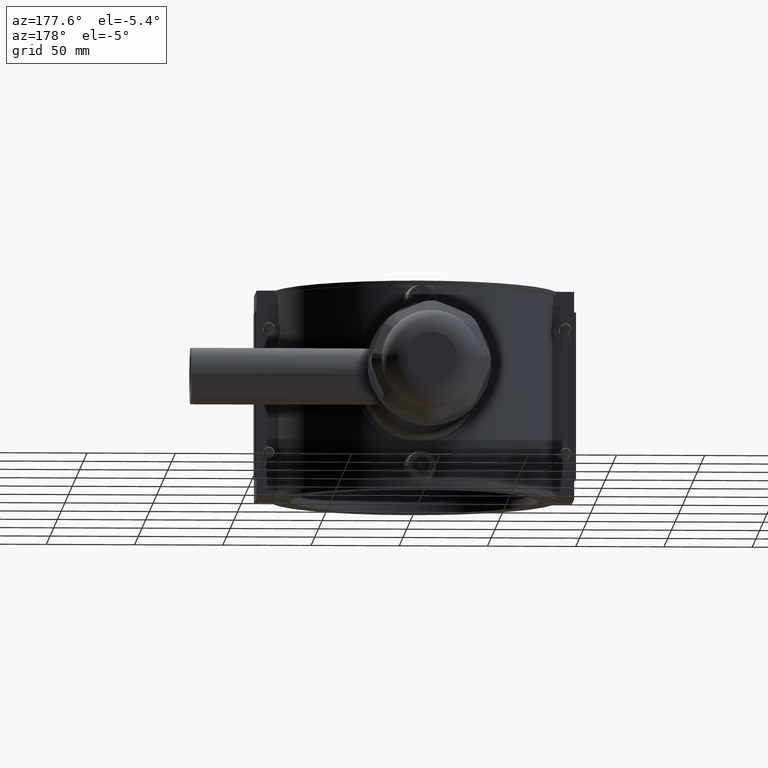
[diagram: clean part render]
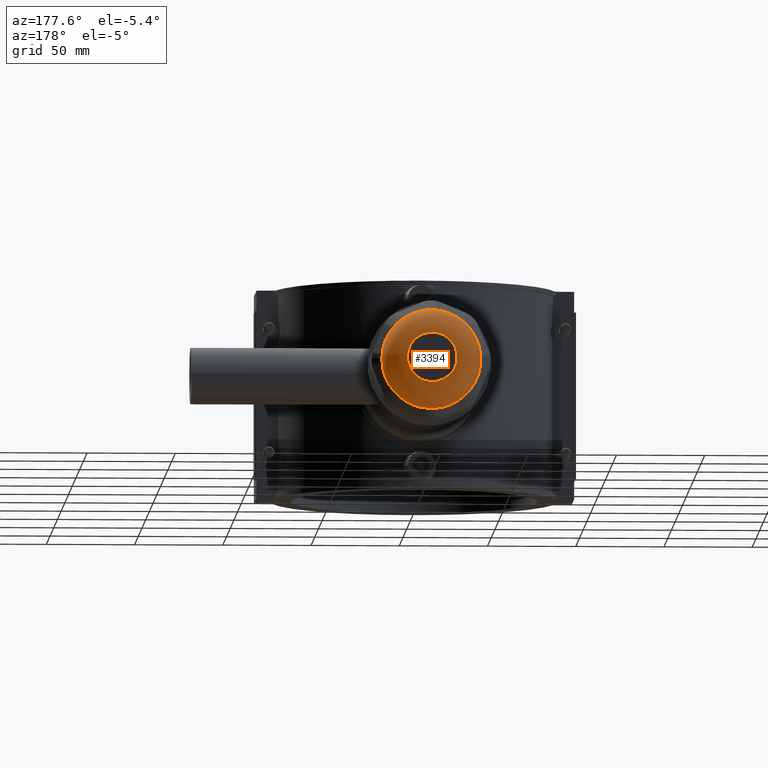
[diagram: same view with one face highlighted and labeled with its STEP entity id]
A machine part, auxiliary view. The second image highlights one B-rep face of the part: STEP entity #3394.
In plain terms, the highlighted toroidal blend (fillet) surface has major radius 14.0929 mm and minor (blend) radius 14 mm.
Its self-contained STEP definition (entity closure, byte-faithful):
#15=TOROIDAL_SURFACE('',#3621,14.0928831169074,14.);
#638=FACE_BOUND('',#1094,.T.);
#691=B_SPLINE_CURVE_WITH_KNOTS('',3,(#5024,#5025,#5026,#5027),
 .UNSPECIFIED.,.F.,.F.,(4,4),(1.23852563111305,1.34473147994745),
 .UNSPECIFIED.);
#693=B_SPLINE_CURVE_WITH_KNOTS('',3,(#5060,#5061,#5062,#5063),
 .UNSPECIFIED.,.F.,.F.,(4,4),(0.,0.0942823848878244),.UNSPECIFIED.);
#695=B_SPLINE_CURVE_WITH_KNOTS('',3,(#5071,#5072,#5073,#5074,#5075,#5076,
#5077,#5078,#5079,#5080,#5081),.UNSPECIFIED.,.F.,.F.,(4,2,3,2,4),(-0.735012587374826,
-0.43467708469622,0.,0.43467708469622,0.735012587374823),.UNSPECIFIED.);
#696=B_SPLINE_CURVE_WITH_KNOTS('',3,(#5100,#5101,#5102,#5103),
 .UNSPECIFIED.,.F.,.F.,(4,4),(1.23852563111309,1.34473147994744),
 .UNSPECIFIED.);
#698=B_SPLINE_CURVE_WITH_KNOTS('',3,(#5136,#5137,#5138,#5139),
 .UNSPECIFIED.,.F.,.F.,(4,4),(0.,0.0942823848878216),.UNSPECIFIED.);
#700=B_SPLINE_CURVE_WITH_KNOTS('',3,(#5147,#5148,#5149,#5150,#5151,#5152,
#5153,#5154,#5155,#5156,#5157),.UNSPECIFIED.,.F.,.F.,(4,2,3,2,4),(-0.735012587374825,
-0.434677084696219,0.,0.434677084696218,0.735012587374823),
 .UNSPECIFIED.);
#701=B_SPLINE_CURVE_WITH_KNOTS('',3,(#5176,#5177,#5178,#5179),
 .UNSPECIFIED.,.F.,.F.,(4,4),(1.23852563111309,1.34473147994743),
 .UNSPECIFIED.);
#703=B_SPLINE_CURVE_WITH_KNOTS('',3,(#5212,#5213,#5214,#5215),
 .UNSPECIFIED.,.F.,.F.,(4,4),(0.,0.094282384887826),.UNSPECIFIED.);
#705=B_SPLINE_CURVE_WITH_KNOTS('',3,(#5223,#5224,#5225,#5226,#5227,#5228,
#5229,#5230,#5231,#5232,#5233),.UNSPECIFIED.,.F.,.F.,(4,2,3,2,4),(-0.735012587374824,
-0.434677084696217,0.,0.434677084696217,0.735012587374822),
 .UNSPECIFIED.);
#706=B_SPLINE_CURVE_WITH_KNOTS('',3,(#5252,#5253,#5254,#5255),
 .UNSPECIFIED.,.F.,.F.,(4,4),(1.2385256311131,1.34473147994746),
 .UNSPECIFIED.);
#708=B_SPLINE_CURVE_WITH_KNOTS('',3,(#5288,#5289,#5290,#5291),
 .UNSPECIFIED.,.F.,.F.,(4,4),(0.,0.0942823848878239),.UNSPECIFIED.);
#710=B_SPLINE_CURVE_WITH_KNOTS('',3,(#5299,#5300,#5301,#5302,#5303,#5304,
#5305,#5306,#5307,#5308,#5309),.UNSPECIFIED.,.F.,.F.,(4,2,3,2,4),(-0.735012587374823,
-0.434677084696218,0.,0.434677084696218,0.735012587374824),
 .UNSPECIFIED.);
#711=B_SPLINE_CURVE_WITH_KNOTS('',3,(#5328,#5329,#5330,#5331),
 .UNSPECIFIED.,.F.,.F.,(4,4),(1.23852563111305,1.3447314799474),
 .UNSPECIFIED.);
#713=B_SPLINE_CURVE_WITH_KNOTS('',3,(#5364,#5365,#5366,#5367),
 .UNSPECIFIED.,.F.,.F.,(4,4),(0.,0.094282384887829),.UNSPECIFIED.);
#715=B_SPLINE_CURVE_WITH_KNOTS('',3,(#5375,#5376,#5377,#5378,#5379,#5380,
#5381,#5382,#5383,#5384,#5385),.UNSPECIFIED.,.F.,.F.,(4,2,3,2,4),(-0.735012587374821,
-0.434677084696222,0.,0.434677084696223,0.735012587374824),
 .UNSPECIFIED.);
#716=B_SPLINE_CURVE_WITH_KNOTS('',3,(#5404,#5405,#5406,#5407),
 .UNSPECIFIED.,.F.,.F.,(4,4),(1.23852563111306,1.34473147994741),
 .UNSPECIFIED.);
#718=B_SPLINE_CURVE_WITH_KNOTS('',3,(#5440,#5441,#5442,#5443),
 .UNSPECIFIED.,.F.,.F.,(4,4),(0.,0.0942823848878234),.UNSPECIFIED.);
#720=B_SPLINE_CURVE_WITH_KNOTS('',3,(#5451,#5452,#5453,#5454,#5455,#5456,
#5457,#5458,#5459,#5460,#5461),.UNSPECIFIED.,.F.,.F.,(4,2,3,2,4),(-0.735012587374824,
-0.434677084696226,0.,0.434677084696225,0.735012587374822),
 .UNSPECIFIED.);
#721=B_SPLINE_CURVE_WITH_KNOTS('',3,(#5480,#5481,#5482,#5483),
 .UNSPECIFIED.,.F.,.F.,(4,4),(1.23852563111311,1.34473147994751),
 .UNSPECIFIED.);
#723=B_SPLINE_CURVE_WITH_KNOTS('',3,(#5516,#5517,#5518,#5519),
 .UNSPECIFIED.,.F.,.F.,(4,4),(0.,0.0942823848878293),.UNSPECIFIED.);
#725=B_SPLINE_CURVE_WITH_KNOTS('',3,(#5527,#5528,#5529,#5530,#5531,#5532,
#5533,#5534,#5535,#5536,#5537),.UNSPECIFIED.,.F.,.F.,(4,2,3,2,4),(-0.735012587374824,
-0.434677084696218,0.,0.434677084696218,0.735012587374822),
 .UNSPECIFIED.);
#726=B_SPLINE_CURVE_WITH_KNOTS('',3,(#5556,#5557,#5558,#5559),
 .UNSPECIFIED.,.F.,.F.,(4,4),(1.238525631113,1.34473147994734),
 .UNSPECIFIED.);
#728=B_SPLINE_CURVE_WITH_KNOTS('',3,(#5583,#5584,#5585,#5586),
 .UNSPECIFIED.,.F.,.F.,(4,4),(0.,0.0942823848878287),.UNSPECIFIED.);
#730=B_SPLINE_CURVE_WITH_KNOTS('',3,(#5594,#5595,#5596,#5597,#5598,#5599,
#5600,#5601,#5602,#5603,#5604),.UNSPECIFIED.,.F.,.F.,(4,2,3,2,4),(-0.735012587374824,
-0.434677084696223,0.,0.434677084696223,0.735012587374821),
 .UNSPECIFIED.);
#878=FACE_OUTER_BOUND('',#1093,.T.);
#1093=EDGE_LOOP('',(#2422,#2423,#2424,#2425,#2426,#2427,#2428,#2429,#2430,
#2431,#2432,#2433,#2434,#2435,#2436,#2437,#2438,#2439,#2440,#2441,#2442,
#2443,#2444,#2445,#2446,#2447,#2448,#2449,#2450,#2451,#2452,#2453));
#1094=EDGE_LOOP('',(#2454));
#1313=CIRCLE('',#3590,28.);
#1314=CIRCLE('',#3592,28.);
#1315=CIRCLE('',#3594,28.);
#1316=CIRCLE('',#3596,28.);
#1317=CIRCLE('',#3598,28.);
#1318=CIRCLE('',#3600,28.);
#1319=CIRCLE('',#3602,28.);
#1320=CIRCLE('',#3604,28.);
#1327=CIRCLE('',#3622,14.0928831169074);
#1417=VERTEX_POINT('',#5000);
#1418=VERTEX_POINT('',#5002);
#1420=VERTEX_POINT('',#5023);
#1423=VERTEX_POINT('',#5036);
#1424=VERTEX_POINT('',#5038);
#1426=VERTEX_POINT('',#5059);
#1428=VERTEX_POINT('',#5099);
#1431=VERTEX_POINT('',#5112);
#1432=VERTEX_POINT('',#5114);
#1434=VERTEX_POINT('',#5135);
#1436=VERTEX_POINT('',#5175);
#1439=VERTEX_POINT('',#5188);
#1440=VERTEX_POINT('',#5190);
#1442=VERTEX_POINT('',#5211);
#1444=VERTEX_POINT('',#5251);
#1447=VERTEX_POINT('',#5264);
#1448=VERTEX_POINT('',#5266);
#1450=VERTEX_POINT('',#5287);
#1452=VERTEX_POINT('',#5327);
#1455=VERTEX_POINT('',#5340);
#1456=VERTEX_POINT('',#5342);
#1458=VERTEX_POINT('',#5363);
#1460=VERTEX_POINT('',#5403);
#1463=VERTEX_POINT('',#5416);
#1464=VERTEX_POINT('',#5418);
#1466=VERTEX_POINT('',#5439);
#1468=VERTEX_POINT('',#5479);
#1471=VERTEX_POINT('',#5492);
#1472=VERTEX_POINT('',#5494);
#1474=VERTEX_POINT('',#5515);
#1476=VERTEX_POINT('',#5555);
#1478=VERTEX_POINT('',#5582);
#1491=VERTEX_POINT('',#5663);
#1745=EDGE_CURVE('',#1418,#1420,#691,.F.);
#1752=EDGE_CURVE('',#1426,#1423,#693,.F.);
#1755=EDGE_CURVE('',#1420,#1426,#695,.F.);
#1757=EDGE_CURVE('',#1424,#1428,#696,.F.);
#1764=EDGE_CURVE('',#1434,#1431,#698,.F.);
#1767=EDGE_CURVE('',#1428,#1434,#700,.F.);
#1769=EDGE_CURVE('',#1432,#1436,#701,.F.);
#1776=EDGE_CURVE('',#1442,#1439,#703,.F.);
#1779=EDGE_CURVE('',#1436,#1442,#705,.F.);
#1781=EDGE_CURVE('',#1440,#1444,#706,.F.);
#1788=EDGE_CURVE('',#1450,#1447,#708,.F.);
#1791=EDGE_CURVE('',#1444,#1450,#710,.F.);
#1793=EDGE_CURVE('',#1448,#1452,#711,.F.);
#1800=EDGE_CURVE('',#1458,#1455,#713,.F.);
#1803=EDGE_CURVE('',#1452,#1458,#715,.F.);
#1805=EDGE_CURVE('',#1456,#1460,#716,.F.);
#1812=EDGE_CURVE('',#1466,#1463,#718,.F.);
#1815=EDGE_CURVE('',#1460,#1466,#720,.F.);
#1817=EDGE_CURVE('',#1464,#1468,#721,.F.);
#1824=EDGE_CURVE('',#1474,#1471,#723,.F.);
#1827=EDGE_CURVE('',#1468,#1474,#725,.F.);
#1829=EDGE_CURVE('',#1472,#1476,#726,.F.);
#1832=EDGE_CURVE('',#1478,#1417,#728,.F.);
#1835=EDGE_CURVE('',#1476,#1478,#730,.F.);
#1837=EDGE_CURVE('',#1440,#1439,#1313,.T.);
#1838=EDGE_CURVE('',#1432,#1431,#1314,.T.);
#1839=EDGE_CURVE('',#1424,#1423,#1315,.T.);
#1840=EDGE_CURVE('',#1418,#1417,#1316,.T.);
#1841=EDGE_CURVE('',#1472,#1471,#1317,.T.);
#1842=EDGE_CURVE('',#1464,#1463,#1318,.T.);
#1843=EDGE_CURVE('',#1456,#1455,#1319,.T.);
#1844=EDGE_CURVE('',#1448,#1447,#1320,.T.);
#1864=EDGE_CURVE('',#1491,#1491,#1327,.T.);
#2422=ORIENTED_EDGE('',*,*,#1839,.T.);
#2423=ORIENTED_EDGE('',*,*,#1752,.F.);
#2424=ORIENTED_EDGE('',*,*,#1755,.F.);
#2425=ORIENTED_EDGE('',*,*,#1745,.F.);
#2426=ORIENTED_EDGE('',*,*,#1840,.T.);
#2427=ORIENTED_EDGE('',*,*,#1832,.F.);
#2428=ORIENTED_EDGE('',*,*,#1835,.F.);
#2429=ORIENTED_EDGE('',*,*,#1829,.F.);
#2430=ORIENTED_EDGE('',*,*,#1841,.T.);
#2431=ORIENTED_EDGE('',*,*,#1824,.F.);
#2432=ORIENTED_EDGE('',*,*,#1827,.F.);
#2433=ORIENTED_EDGE('',*,*,#1817,.F.);
#2434=ORIENTED_EDGE('',*,*,#1842,.T.);
#2435=ORIENTED_EDGE('',*,*,#1812,.F.);
#2436=ORIENTED_EDGE('',*,*,#1815,.F.);
#2437=ORIENTED_EDGE('',*,*,#1805,.F.);
#2438=ORIENTED_EDGE('',*,*,#1843,.T.);
#2439=ORIENTED_EDGE('',*,*,#1800,.F.);
#2440=ORIENTED_EDGE('',*,*,#1803,.F.);
#2441=ORIENTED_EDGE('',*,*,#1793,.F.);
#2442=ORIENTED_EDGE('',*,*,#1844,.T.);
#2443=ORIENTED_EDGE('',*,*,#1788,.F.);
#2444=ORIENTED_EDGE('',*,*,#1791,.F.);
#2445=ORIENTED_EDGE('',*,*,#1781,.F.);
#2446=ORIENTED_EDGE('',*,*,#1837,.T.);
#2447=ORIENTED_EDGE('',*,*,#1776,.F.);
#2448=ORIENTED_EDGE('',*,*,#1779,.F.);
#2449=ORIENTED_EDGE('',*,*,#1769,.F.);
#2450=ORIENTED_EDGE('',*,*,#1838,.T.);
#2451=ORIENTED_EDGE('',*,*,#1764,.F.);
#2452=ORIENTED_EDGE('',*,*,#1767,.F.);
#2453=ORIENTED_EDGE('',*,*,#1757,.F.);
#2454=ORIENTED_EDGE('',*,*,#1864,.T.);
#3394=ADVANCED_FACE('',(#878,#638),#15,.T.);
#3590=AXIS2_PLACEMENT_3D('',#5607,#3976,#3977);
#3592=AXIS2_PLACEMENT_3D('',#5609,#3980,#3981);
#3594=AXIS2_PLACEMENT_3D('',#5611,#3984,#3985);
#3596=AXIS2_PLACEMENT_3D('',#5613,#3988,#3989);
#3598=AXIS2_PLACEMENT_3D('',#5615,#3992,#3993);
#3600=AXIS2_PLACEMENT_3D('',#5617,#3996,#3997);
#3602=AXIS2_PLACEMENT_3D('',#5619,#4000,#4001);
#3604=AXIS2_PLACEMENT_3D('',#5621,#4004,#4005);
#3621=AXIS2_PLACEMENT_3D('',#5662,#4051,#4052);
#3622=AXIS2_PLACEMENT_3D('',#5664,#4053,#4054);
#3976=DIRECTION('center_axis',(0.,1.,3.06161699786838E-16));
#3977=DIRECTION('ref_axis',(1.,0.,0.));
#3980=DIRECTION('center_axis',(0.,1.,3.06161699786838E-16));
#3981=DIRECTION('ref_axis',(1.,0.,0.));
#3984=DIRECTION('center_axis',(0.,1.,3.06161699786838E-16));
#3985=DIRECTION('ref_axis',(1.,0.,0.));
#3988=DIRECTION('center_axis',(0.,1.,3.06161699786838E-16));
#3989=DIRECTION('ref_axis',(1.,0.,0.));
#3992=DIRECTION('center_axis',(0.,1.,3.06161699786838E-16));
#3993=DIRECTION('ref_axis',(1.,0.,0.));
#3996=DIRECTION('center_axis',(0.,1.,3.06161699786838E-16));
#3997=DIRECTION('ref_axis',(1.,0.,0.));
#4000=DIRECTION('center_axis',(0.,1.,3.06161699786838E-16));
#4001=DIRECTION('ref_axis',(1.,0.,0.));
#4004=DIRECTION('center_axis',(0.,1.,3.06161699786838E-16));
#4005=DIRECTION('ref_axis',(1.,0.,0.));
#4051=DIRECTION('center_axis',(0.,1.,3.06161699786838E-16));
#4052=DIRECTION('ref_axis',(-6.12323399573677E-17,0.,1.));
#4053=DIRECTION('center_axis',(0.,-1.,-3.06161699786838E-16));
#4054=DIRECTION('ref_axis',(-6.12323399573677E-17,-3.15115939134757E-16,
1.));
#5000=CARTESIAN_POINT('',(-21.4213537201171,234.61,-18.0312396910923));
#5002=CARTESIAN_POINT('',(-18.0312396910924,234.61,-21.4213537201171));
#5023=CARTESIAN_POINT('',(-17.340487045896,234.368690941618,-22.0171298084506));
#5024=CARTESIAN_POINT('Ctrl Pts',(-17.340487045896,234.368690941618,-22.0171298084506));
#5025=CARTESIAN_POINT('Ctrl Pts',(-17.5746813802734,234.460054073198,-21.8212325979039));
#5026=CARTESIAN_POINT('Ctrl Pts',(-17.8045488278447,234.540862236518,-21.6226308106536));
#5027=CARTESIAN_POINT('Ctrl Pts',(-18.0312396910924,234.61,-21.4213537201171));
#5036=CARTESIAN_POINT('',(-2.39717261891906,234.61,-27.8971963364619));
#5038=CARTESIAN_POINT('',(2.39717261891912,234.61,-27.8971963364619));
#5059=CARTESIAN_POINT('',(-3.30688581058933,234.368690941618,-27.8300377690504));
#5060=CARTESIAN_POINT('Ctrl Pts',(-2.39717261891906,234.61,-27.8971963364619));
#5061=CARTESIAN_POINT('Ctrl Pts',(-2.7030408983586,234.540119900574,-27.8790331378754));
#5062=CARTESIAN_POINT('Ctrl Pts',(-3.006485143604,234.458917789201,-27.8568069633804));
#5063=CARTESIAN_POINT('Ctrl Pts',(-3.30688581058923,234.368690941618,-27.8300377690504));
#5071=CARTESIAN_POINT('Ctrl Pts',(-3.30688581058933,234.368690941617,-27.8300377690504));
#5072=CARTESIAN_POINT('Ctrl Pts',(-4.30420438138939,234.069141304851,-27.7411650814545));
#5073=CARTESIAN_POINT('Ctrl Pts',(-5.35218477406998,233.820893907289,-27.5757784365695));
#5074=CARTESIAN_POINT('Ctrl Pts',(-7.90741507463403,233.376060084201,-26.9988520516262));
#5075=CARTESIAN_POINT('Ctrl Pts',(-9.41115969142624,233.25522717543,-26.5067692349969));
#5076=CARTESIAN_POINT('Ctrl Pts',(-10.7497905641013,233.25522717543,-25.9522901725236));
#5077=CARTESIAN_POINT('Ctrl Pts',(-12.0884214367763,233.25522717543,-25.3978111100503));
#5078=CARTESIAN_POINT('Ctrl Pts',(-13.4996845490268,233.376060084201,-24.6824581908876));
#5079=CARTESIAN_POINT('Ctrl Pts',(-15.7144537810878,233.820893907289,-23.2835860769043));
#5080=CARTESIAN_POINT('Ctrl Pts',(-16.5724338414186,234.069141304851,-22.6594980528052));
#5081=CARTESIAN_POINT('Ctrl Pts',(-17.340487045896,234.368690941617,-22.0171298084506));
#5099=CARTESIAN_POINT('',(3.30688581058938,234.368690941618,-27.8300377690504));
#5100=CARTESIAN_POINT('Ctrl Pts',(3.30688581058938,234.368690941618,-27.8300377690504));
#5101=CARTESIAN_POINT('Ctrl Pts',(3.00276516264256,234.460054073198,-27.857117925011));
#5102=CARTESIAN_POINT('Ctrl Pts',(2.6997916611705,234.540862236518,-27.8792260854423));
#5103=CARTESIAN_POINT('Ctrl Pts',(2.39717261891912,234.61,-27.8971963364619));
#5112=CARTESIAN_POINT('',(18.0312396910923,234.61,-21.4213537201171));
#5114=CARTESIAN_POINT('',(21.4213537201172,234.61,-18.0312396910923));
#5135=CARTESIAN_POINT('',(17.340487045896,234.368690941618,-22.0171298084506));
#5136=CARTESIAN_POINT('Ctrl Pts',(18.0312396910923,234.61,-21.4213537201171));
#5137=CARTESIAN_POINT('Ctrl Pts',(17.8021148356623,234.540119900574,-21.6247919337701));
#5138=CARTESIAN_POINT('Ctrl Pts',(17.5718310734319,234.458917789201,-21.8236431385899));
#5139=CARTESIAN_POINT('Ctrl Pts',(17.3404870458961,234.368690941618,-22.0171298084505));
#5147=CARTESIAN_POINT('Ctrl Pts',(17.340487045896,234.368690941617,-22.0171298084506));
#5148=CARTESIAN_POINT('Ctrl Pts',(16.5724338414187,234.069141304851,-22.6594980528052));
#5149=CARTESIAN_POINT('Ctrl Pts',(15.7144537810878,233.820893907289,-23.2835860769043));
#5150=CARTESIAN_POINT('Ctrl Pts',(13.4996845490268,233.376060084201,-24.6824581908876));
#5151=CARTESIAN_POINT('Ctrl Pts',(12.0884214367763,233.25522717543,-25.3978111100503));
#5152=CARTESIAN_POINT('Ctrl Pts',(10.7497905641013,233.25522717543,-25.9522901725236));
#5153=CARTESIAN_POINT('Ctrl Pts',(9.41115969142627,233.25522717543,-26.5067692349969));
#5154=CARTESIAN_POINT('Ctrl Pts',(7.90741507463407,233.376060084201,-26.9988520516262));
#5155=CARTESIAN_POINT('Ctrl Pts',(5.35218477407003,233.820893907289,-27.5757784365695));
#5156=CARTESIAN_POINT('Ctrl Pts',(4.30420438138945,234.069141304851,-27.7411650814544));
#5157=CARTESIAN_POINT('Ctrl Pts',(3.30688581058937,234.368690941617,-27.8300377690504));
#5175=CARTESIAN_POINT('',(22.0171298084506,234.368690941617,-17.3404870458959));
#5176=CARTESIAN_POINT('Ctrl Pts',(22.0171298084506,234.368690941617,-17.3404870458959));
#5177=CARTESIAN_POINT('Ctrl Pts',(21.8212325979039,234.460054073198,-17.5746813802733));
#5178=CARTESIAN_POINT('Ctrl Pts',(21.6226308106537,234.540862236518,-17.8045488278446));
#5179=CARTESIAN_POINT('Ctrl Pts',(21.4213537201172,234.61,-18.0312396910923));
#5188=CARTESIAN_POINT('',(27.8971963364619,234.61,-2.39717261891902));
#5190=CARTESIAN_POINT('',(27.8971963364619,234.61,2.39717261891917));
#5211=CARTESIAN_POINT('',(27.8300377690505,234.368690941618,-3.30688581058928));
#5212=CARTESIAN_POINT('Ctrl Pts',(27.8971963364619,234.61,-2.39717261891901));
#5213=CARTESIAN_POINT('Ctrl Pts',(27.8790331378755,234.540119900574,-2.70304089835855));
#5214=CARTESIAN_POINT('Ctrl Pts',(27.8568069633804,234.458917789201,-3.00648514360399));
#5215=CARTESIAN_POINT('Ctrl Pts',(27.8300377690505,234.368690941618,-3.30688581058918));
#5223=CARTESIAN_POINT('Ctrl Pts',(27.8300377690505,234.368690941617,-3.30688581058928));
#5224=CARTESIAN_POINT('Ctrl Pts',(27.7411650814545,234.069141304851,-4.30420438138936));
#5225=CARTESIAN_POINT('Ctrl Pts',(27.5757784365695,233.820893907289,-5.35218477406995));
#5226=CARTESIAN_POINT('Ctrl Pts',(26.9988520516262,233.376060084201,-7.90741507463401));
#5227=CARTESIAN_POINT('Ctrl Pts',(26.506769234997,233.25522717543,-9.41115969142619));
#5228=CARTESIAN_POINT('Ctrl Pts',(25.9522901725237,233.25522717543,-10.7497905641012));
#5229=CARTESIAN_POINT('Ctrl Pts',(25.3978111100503,233.25522717543,-12.0884214367763));
#5230=CARTESIAN_POINT('Ctrl Pts',(24.6824581908877,233.376060084201,-13.4996845490267));
#5231=CARTESIAN_POINT('Ctrl Pts',(23.2835860769044,233.820893907289,-15.7144537810877));
#5232=CARTESIAN_POINT('Ctrl Pts',(22.6594980528053,234.069141304851,-16.5724338414186));
#5233=CARTESIAN_POINT('Ctrl Pts',(22.0171298084506,234.368690941617,-17.3404870458959));
#5251=CARTESIAN_POINT('',(27.8300377690504,234.368690941618,3.30688581058942));
#5252=CARTESIAN_POINT('Ctrl Pts',(27.8300377690504,234.368690941618,3.30688581058941));
#5253=CARTESIAN_POINT('Ctrl Pts',(27.8571179250111,234.460054073198,3.0027651626426));
#5254=CARTESIAN_POINT('Ctrl Pts',(27.8792260854423,234.540862236518,2.69979166117054));
#5255=CARTESIAN_POINT('Ctrl Pts',(27.8971963364619,234.61,2.39717261891916));
#5264=CARTESIAN_POINT('',(21.4213537201171,234.61,18.0312396910924));
#5266=CARTESIAN_POINT('',(18.0312396910923,234.61,21.4213537201172));
#5287=CARTESIAN_POINT('',(22.0171298084506,234.368690941617,17.3404870458961));
#5288=CARTESIAN_POINT('Ctrl Pts',(21.4213537201171,234.61,18.0312396910924));
#5289=CARTESIAN_POINT('Ctrl Pts',(21.6247919337702,234.540119900574,17.8021148356623));
#5290=CARTESIAN_POINT('Ctrl Pts',(21.8236431385899,234.458917789201,17.5718310734319));
#5291=CARTESIAN_POINT('Ctrl Pts',(22.0171298084506,234.368690941618,17.3404870458961));
#5299=CARTESIAN_POINT('Ctrl Pts',(22.0171298084506,234.368690941617,17.3404870458961));
#5300=CARTESIAN_POINT('Ctrl Pts',(22.6594980528053,234.069141304851,16.5724338414187));
#5301=CARTESIAN_POINT('Ctrl Pts',(23.2835860769044,233.820893907289,15.7144537810878));
#5302=CARTESIAN_POINT('Ctrl Pts',(24.6824581908877,233.376060084201,13.4996845490268));
#5303=CARTESIAN_POINT('Ctrl Pts',(25.3978111100503,233.25522717543,12.0884214367764));
#5304=CARTESIAN_POINT('Ctrl Pts',(25.9522901725236,233.25522717543,10.7497905641014));
#5305=CARTESIAN_POINT('Ctrl Pts',(26.506769234997,233.25522717543,9.41115969142631));
#5306=CARTESIAN_POINT('Ctrl Pts',(26.9988520516262,233.376060084201,7.90741507463411));
#5307=CARTESIAN_POINT('Ctrl Pts',(27.5757784365695,233.820893907289,5.35218477407006));
#5308=CARTESIAN_POINT('Ctrl Pts',(27.7411650814545,234.069141304851,4.30420438138948));
#5309=CARTESIAN_POINT('Ctrl Pts',(27.8300377690505,234.368690941617,3.30688581058941));
#5327=CARTESIAN_POINT('',(17.340487045896,234.368690941618,22.0171298084507));
#5328=CARTESIAN_POINT('Ctrl Pts',(17.340487045896,234.368690941618,22.0171298084507));
#5329=CARTESIAN_POINT('Ctrl Pts',(17.5746813802734,234.460054073198,21.821232597904));
#5330=CARTESIAN_POINT('Ctrl Pts',(17.8045488278446,234.540862236518,21.6226308106537));
#5331=CARTESIAN_POINT('Ctrl Pts',(18.0312396910923,234.61,21.4213537201172));
#5340=CARTESIAN_POINT('',(2.39717261891903,234.61,27.897196336462));
#5342=CARTESIAN_POINT('',(-2.39717261891905,234.61,27.897196336462));
#5363=CARTESIAN_POINT('',(3.30688581058935,234.368690941618,27.8300377690505));
#5364=CARTESIAN_POINT('Ctrl Pts',(2.39717261891903,234.61,27.897196336462));
#5365=CARTESIAN_POINT('Ctrl Pts',(2.70304089835858,234.540119900574,27.8790331378755));
#5366=CARTESIAN_POINT('Ctrl Pts',(3.00648514360403,234.458917789201,27.8568069633804));
#5367=CARTESIAN_POINT('Ctrl Pts',(3.30688581058924,234.368690941618,27.8300377690505));
#5375=CARTESIAN_POINT('Ctrl Pts',(3.30688581058934,234.368690941617,27.8300377690505));
#5376=CARTESIAN_POINT('Ctrl Pts',(4.3042043813894,234.069141304851,27.7411650814546));
#5377=CARTESIAN_POINT('Ctrl Pts',(5.35218477406995,233.820893907289,27.5757784365696));
#5378=CARTESIAN_POINT('Ctrl Pts',(7.907415074634,233.376060084201,26.9988520516263));
#5379=CARTESIAN_POINT('Ctrl Pts',(9.41115969142622,233.25522717543,26.506769234997));
#5380=CARTESIAN_POINT('Ctrl Pts',(10.7497905641013,233.25522717543,25.9522901725237));
#5381=CARTESIAN_POINT('Ctrl Pts',(12.0884214367763,233.25522717543,25.3978111100504));
#5382=CARTESIAN_POINT('Ctrl Pts',(13.4996845490268,233.376060084201,24.6824581908877));
#5383=CARTESIAN_POINT('Ctrl Pts',(15.7144537810878,233.820893907289,23.2835860769044));
#5384=CARTESIAN_POINT('Ctrl Pts',(16.5724338414186,234.069141304851,22.6594980528053));
#5385=CARTESIAN_POINT('Ctrl Pts',(17.340487045896,234.368690941618,22.0171298084507));
#5403=CARTESIAN_POINT('',(-3.30688581058937,234.368690941617,27.8300377690505));
#5404=CARTESIAN_POINT('Ctrl Pts',(-3.30688581058937,234.368690941617,27.8300377690505));
#5405=CARTESIAN_POINT('Ctrl Pts',(-3.00276516264254,234.460054073198,27.8571179250111));
#5406=CARTESIAN_POINT('Ctrl Pts',(-2.69979166117045,234.540862236518,27.8792260854424));
#5407=CARTESIAN_POINT('Ctrl Pts',(-2.39717261891905,234.61,27.897196336462));
#5416=CARTESIAN_POINT('',(-18.0312396910923,234.61,21.4213537201172));
#5418=CARTESIAN_POINT('',(-21.4213537201172,234.61,18.0312396910924));
#5439=CARTESIAN_POINT('',(-17.340487045896,234.368690941618,22.0171298084507));
#5440=CARTESIAN_POINT('Ctrl Pts',(-18.0312396910923,234.61,21.4213537201172));
#5441=CARTESIAN_POINT('Ctrl Pts',(-17.8021148356622,234.540119900574,21.6247919337702));
#5442=CARTESIAN_POINT('Ctrl Pts',(-17.5718310734319,234.458917789201,21.82364313859));
#5443=CARTESIAN_POINT('Ctrl Pts',(-17.3404870458961,234.368690941618,22.0171298084506));
#5451=CARTESIAN_POINT('Ctrl Pts',(-17.340487045896,234.368690941617,22.0171298084507));
#5452=CARTESIAN_POINT('Ctrl Pts',(-16.5724338414187,234.069141304851,22.6594980528053));
#5453=CARTESIAN_POINT('Ctrl Pts',(-15.7144537810878,233.820893907289,23.2835860769044));
#5454=CARTESIAN_POINT('Ctrl Pts',(-13.4996845490268,233.376060084201,24.6824581908877));
#5455=CARTESIAN_POINT('Ctrl Pts',(-12.0884214367764,233.25522717543,25.3978111100504));
#5456=CARTESIAN_POINT('Ctrl Pts',(-10.7497905641013,233.25522717543,25.9522901725237));
#5457=CARTESIAN_POINT('Ctrl Pts',(-9.41115969142624,233.25522717543,26.506769234997));
#5458=CARTESIAN_POINT('Ctrl Pts',(-7.90741507463401,233.376060084201,26.9988520516263));
#5459=CARTESIAN_POINT('Ctrl Pts',(-5.35218477406996,233.820893907289,27.5757784365696));
#5460=CARTESIAN_POINT('Ctrl Pts',(-4.30420438138942,234.069141304851,27.7411650814546));
#5461=CARTESIAN_POINT('Ctrl Pts',(-3.30688581058937,234.368690941617,27.8300377690505));
#5479=CARTESIAN_POINT('',(-22.0171298084506,234.368690941617,17.3404870458961));
#5480=CARTESIAN_POINT('Ctrl Pts',(-22.0171298084506,234.368690941617,17.3404870458961));
#5481=CARTESIAN_POINT('Ctrl Pts',(-21.8212325979039,234.460054073198,17.5746813802735));
#5482=CARTESIAN_POINT('Ctrl Pts',(-21.6226308106537,234.540862236518,17.8045488278447));
#5483=CARTESIAN_POINT('Ctrl Pts',(-21.4213537201171,234.61,18.0312396910924));
#5492=CARTESIAN_POINT('',(-27.8971963364619,234.61,2.39717261891908));
#5494=CARTESIAN_POINT('',(-27.8971963364619,234.61,-2.39717261891899));
#5515=CARTESIAN_POINT('',(-27.8300377690505,234.368690941618,3.3068858105894));
#5516=CARTESIAN_POINT('Ctrl Pts',(-27.8971963364619,234.61,2.39717261891909));
#5517=CARTESIAN_POINT('Ctrl Pts',(-27.8790331378754,234.540119900574,2.70304089835864));
#5518=CARTESIAN_POINT('Ctrl Pts',(-27.8568069633804,234.458917789201,3.00648514360408));
#5519=CARTESIAN_POINT('Ctrl Pts',(-27.8300377690505,234.368690941618,3.3068858105893));
#5527=CARTESIAN_POINT('Ctrl Pts',(-27.8300377690505,234.368690941617,3.3068858105894));
#5528=CARTESIAN_POINT('Ctrl Pts',(-27.7411650814545,234.069141304851,4.30420438138948));
#5529=CARTESIAN_POINT('Ctrl Pts',(-27.5757784365695,233.820893907289,5.35218477407006));
#5530=CARTESIAN_POINT('Ctrl Pts',(-26.9988520516262,233.376060084201,7.90741507463411));
#5531=CARTESIAN_POINT('Ctrl Pts',(-26.506769234997,233.25522717543,9.4111596914263));
#5532=CARTESIAN_POINT('Ctrl Pts',(-25.9522901725237,233.25522717543,10.7497905641013));
#5533=CARTESIAN_POINT('Ctrl Pts',(-25.3978111100503,233.25522717543,12.0884214367764));
#5534=CARTESIAN_POINT('Ctrl Pts',(-24.6824581908877,233.376060084201,13.4996845490268));
#5535=CARTESIAN_POINT('Ctrl Pts',(-23.2835860769044,233.820893907289,15.7144537810878));
#5536=CARTESIAN_POINT('Ctrl Pts',(-22.6594980528053,234.069141304851,16.5724338414187));
#5537=CARTESIAN_POINT('Ctrl Pts',(-22.0171298084506,234.368690941617,17.3404870458961));
#5555=CARTESIAN_POINT('',(-27.8300377690505,234.368690941617,-3.30688581058932));
#5556=CARTESIAN_POINT('Ctrl Pts',(-27.8300377690505,234.368690941617,-3.30688581058931));
#5557=CARTESIAN_POINT('Ctrl Pts',(-27.8571179250111,234.460054073198,-3.00276516264248));
#5558=CARTESIAN_POINT('Ctrl Pts',(-27.8792260854423,234.540862236518,-2.69979166117039));
#5559=CARTESIAN_POINT('Ctrl Pts',(-27.8971963364619,234.61,-2.39717261891899));
#5582=CARTESIAN_POINT('',(-22.0171298084506,234.368690941618,-17.340487045896));
#5583=CARTESIAN_POINT('Ctrl Pts',(-21.4213537201171,234.61,-18.0312396910923));
#5584=CARTESIAN_POINT('Ctrl Pts',(-21.6247919337701,234.540119900574,-17.8021148356622));
#5585=CARTESIAN_POINT('Ctrl Pts',(-21.82364313859,234.458917789201,-17.5718310734318));
#5586=CARTESIAN_POINT('Ctrl Pts',(-22.0171298084506,234.368690941618,-17.340487045896));
#5594=CARTESIAN_POINT('Ctrl Pts',(-22.0171298084506,234.368690941618,-17.340487045896));
#5595=CARTESIAN_POINT('Ctrl Pts',(-22.6594980528052,234.069141304851,-16.5724338414186));
#5596=CARTESIAN_POINT('Ctrl Pts',(-23.2835860769044,233.820893907289,-15.7144537810878));
#5597=CARTESIAN_POINT('Ctrl Pts',(-24.6824581908877,233.376060084201,-13.4996845490267));
#5598=CARTESIAN_POINT('Ctrl Pts',(-25.3978111100503,233.25522717543,-12.0884214367763));
#5599=CARTESIAN_POINT('Ctrl Pts',(-25.9522901725236,233.25522717543,-10.7497905641012));
#5600=CARTESIAN_POINT('Ctrl Pts',(-26.506769234997,233.25522717543,-9.41115969142619));
#5601=CARTESIAN_POINT('Ctrl Pts',(-26.9988520516262,233.376060084201,-7.90741507463397));
#5602=CARTESIAN_POINT('Ctrl Pts',(-27.5757784365695,233.820893907289,-5.35218477406993));
#5603=CARTESIAN_POINT('Ctrl Pts',(-27.7411650814545,234.069141304851,-4.30420438138937));
#5604=CARTESIAN_POINT('Ctrl Pts',(-27.8300377690505,234.368690941617,-3.30688581058933));
#5607=CARTESIAN_POINT('Origin',(0.,234.61,5.03972774019115E-14));
#5609=CARTESIAN_POINT('Origin',(0.,234.61,5.03972774019115E-14));
#5611=CARTESIAN_POINT('Origin',(0.,234.61,5.03972774019115E-14));
#5613=CARTESIAN_POINT('Origin',(0.,234.61,5.03972774019115E-14));
#5615=CARTESIAN_POINT('Origin',(0.,234.61,5.03972774019115E-14));
#5617=CARTESIAN_POINT('Origin',(0.,234.61,5.03972774019115E-14));
#5619=CARTESIAN_POINT('Origin',(0.,234.61,5.03972774019115E-14));
#5621=CARTESIAN_POINT('Origin',(0.,234.61,5.03972774019115E-14));
#5662=CARTESIAN_POINT('Origin',(0.,233.,4.99043570652546E-14));
#5663=CARTESIAN_POINT('',(2.58882062998176E-15,247.,-14.0928831169073));
#5664=CARTESIAN_POINT('Origin',(0.,247.,5.41906208622704E-14));